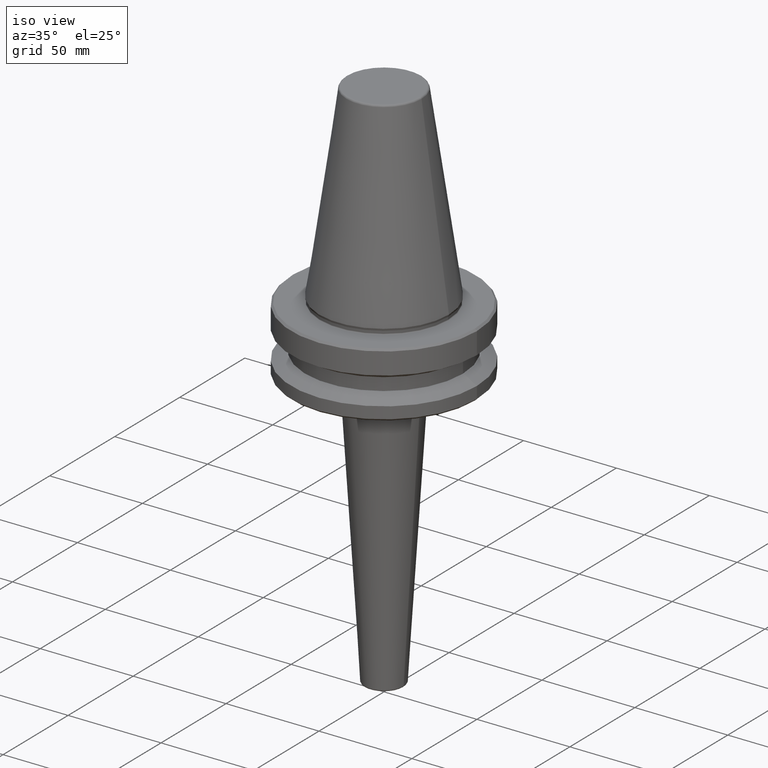
[diagram: clean part render]
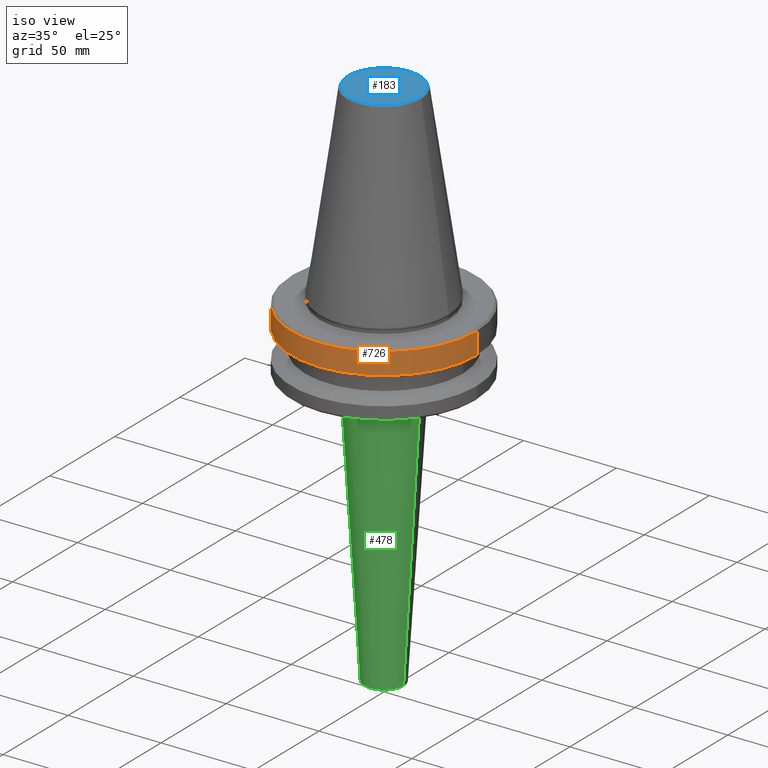
[diagram: same view with three faces highlighted in distinct colors, each labeled with its STEP entity id]
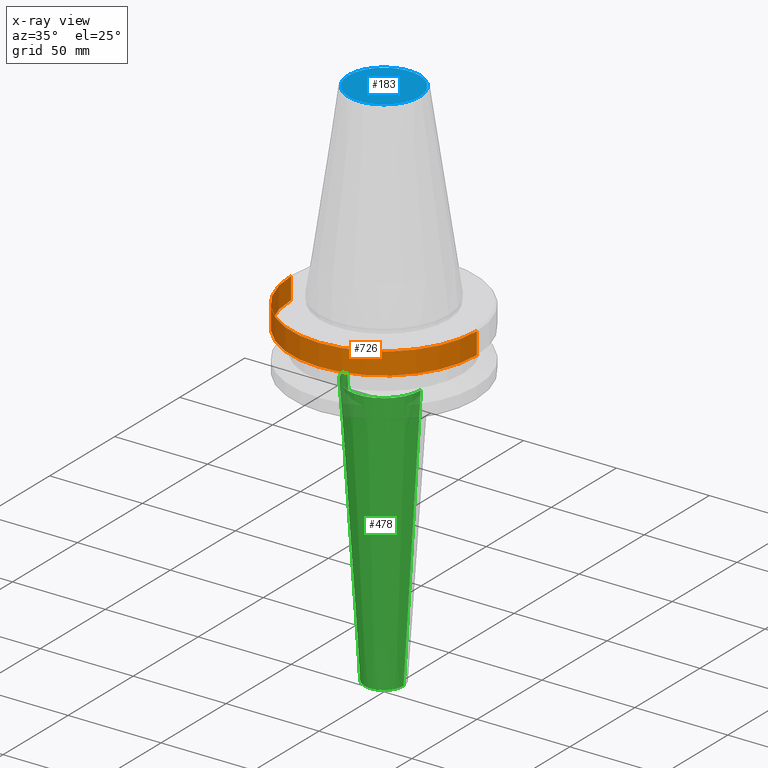
[diagram: x-ray of the same camera — body ghosted, the three highlighted faces saturated]
A machine part, iso view with three faces highlighted in distinct colors.
The next image is the same camera in x-ray (body ghosted, the three faces saturated) — at least one of them is partly hidden behind the body in this view.
Their STEP definitions:

[orange] entity #726 — the highlighted cylindrical surface (partial cylindrical patch) has radius 50 mm, axis along (-0, -0, 1).
#56 = VERTEX_POINT ( 'NONE', #173 ) ;
#65 = DIRECTION ( 'NONE',  ( -0.0000000000000000000, -0.0000000000000000000, 1.000000000000000000 ) ) ;
#99 = AXIS2_PLACEMENT_3D ( 'NONE', #133, #65, #669 ) ;
#133 = CARTESIAN_POINT ( 'NONE',  ( 0.0000000000000000000, 0.0000000000000000000, -15.70022000322675400 ) ) ;
#135 = VERTEX_POINT ( 'NONE', #220 ) ;
#169 = VECTOR ( 'NONE', #215, 1000.000000000000000 ) ;
#173 = CARTESIAN_POINT ( 'NONE',  ( -50.00000000000000000, 6.123233995736766900E-015, -15.70022000322675400 ) ) ;
#175 = ORIENTED_EDGE ( 'NONE', *, *, #287, .T. ) ;
#215 = DIRECTION ( 'NONE',  ( -0.0000000000000000000, -0.0000000000000000000, 1.000000000000000000 ) ) ;
#218 = FACE_OUTER_BOUND ( 'NONE', #826, .T. ) ;
#220 = CARTESIAN_POINT ( 'NONE',  ( 50.00000000000000000, 0.0000000000000000000, -15.70022000322675400 ) ) ;
#257 = CIRCLE ( 'NONE', #99, 50.00000000000000000 ) ;
#277 = DIRECTION ( 'NONE',  ( 1.000000000000000000, 0.0000000000000000000, 0.0000000000000000000 ) ) ;
#287 = EDGE_CURVE ( 'NONE', #56, #135, #257, .T. ) ;
#311 = ORIENTED_EDGE ( 'NONE', *, *, #468, .F. ) ;
#312 = AXIS2_PLACEMENT_3D ( 'NONE', #819, #592, #277 ) ;
#415 = CARTESIAN_POINT ( 'NONE',  ( -50.00000000000000000, 6.123233995736766100E-015, -3.999999999999989800 ) ) ;
#425 = VERTEX_POINT ( 'NONE', #676 ) ;
#462 = CYLINDRICAL_SURFACE ( 'NONE', #709, 50.00000000000000000 ) ;
#468 = EDGE_CURVE ( 'NONE', #856, #425, #582, .T. ) ;
#481 = CARTESIAN_POINT ( 'NONE',  ( -50.00000000000000000, 6.123233995736766100E-015, 124.5046326327850600 ) ) ;
#484 = DIRECTION ( 'NONE',  ( -0.0000000000000000000, -0.0000000000000000000, 1.000000000000000000 ) ) ;
#494 = DIRECTION ( 'NONE',  ( 1.000000000000000000, 0.0000000000000000000, 0.0000000000000000000 ) ) ;
#536 = LINE ( 'NONE', #965, #169 ) ;
#582 = CIRCLE ( 'NONE', #312, 50.00000000000000000 ) ;
#585 = ORIENTED_EDGE ( 'NONE', *, *, #607, .T. ) ;
#592 = DIRECTION ( 'NONE',  ( -0.0000000000000000000, -0.0000000000000000000, 1.000000000000000000 ) ) ;
#601 = EDGE_CURVE ( 'NONE', #56, #856, #821, .T. ) ;
#607 = EDGE_CURVE ( 'NONE', #135, #425, #536, .T. ) ;
#669 = DIRECTION ( 'NONE',  ( 1.000000000000000000, 0.0000000000000000000, 0.0000000000000000000 ) ) ;
#676 = CARTESIAN_POINT ( 'NONE',  ( 50.00000000000000000, 0.0000000000000000000, -3.999999999999989800 ) ) ;
#709 = AXIS2_PLACEMENT_3D ( 'NONE', #797, #484, #494 ) ;
#726 = ADVANCED_FACE ( 'NONE', ( #218 ), #462, .T. ) ;
#797 = CARTESIAN_POINT ( 'NONE',  ( 0.0000000000000000000, 0.0000000000000000000, 124.5046326327850600 ) ) ;
#819 = CARTESIAN_POINT ( 'NONE',  ( 0.0000000000000000000, 0.0000000000000000000, -3.999999999999989800 ) ) ;
#821 = LINE ( 'NONE', #481, #925 ) ;
#826 = EDGE_LOOP ( 'NONE', ( #830, #175, #585, #311 ) ) ;
#830 = ORIENTED_EDGE ( 'NONE', *, *, #601, .F. ) ;
#832 = DIRECTION ( 'NONE',  ( -0.0000000000000000000, -0.0000000000000000000, 1.000000000000000000 ) ) ;
#856 = VERTEX_POINT ( 'NONE', #415 ) ;
#925 = VECTOR ( 'NONE', #832, 1000.000000000000000 ) ;
#965 = CARTESIAN_POINT ( 'NONE',  ( 50.00000000000000000, 0.0000000000000000000, 124.5046326327850600 ) ) ;

[blue] entity #183 — the highlighted planar face has unit normal (0, 0, -1).
#47 = DIRECTION ( 'NONE',  ( 1.000000000000000000, 0.0000000000000000000, 0.0000000000000000000 ) ) ;
#117 = AXIS2_PLACEMENT_3D ( 'NONE', #303, #351, #697 ) ;
#134 = AXIS2_PLACEMENT_3D ( 'NONE', #627, #911, #47 ) ;
#183 = ADVANCED_FACE ( 'NONE', ( #763 ), #828, .F. ) ;
#303 = CARTESIAN_POINT ( 'NONE',  ( 0.0000000000000000000, 0.0000000000000000000, 101.7999999999999800 ) ) ;
#306 = EDGE_LOOP ( 'NONE', ( #388, #984 ) ) ;
#330 = VERTEX_POINT ( 'NONE', #973 ) ;
#351 = DIRECTION ( 'NONE',  ( -0.0000000000000000000, -0.0000000000000000000, 1.000000000000000000 ) ) ;
#382 = EDGE_CURVE ( 'NONE', #461, #330, #557, .T. ) ;
#388 = ORIENTED_EDGE ( 'NONE', *, *, #1001, .T. ) ;
#461 = VERTEX_POINT ( 'NONE', #877 ) ;
#557 = CIRCLE ( 'NONE', #134, 19.21428326503027200 ) ;
#579 = AXIS2_PLACEMENT_3D ( 'NONE', #847, #640, #983 ) ;
#627 = CARTESIAN_POINT ( 'NONE',  ( 0.0000000000000000000, 0.0000000000000000000, 101.7999999999999800 ) ) ;
#640 = DIRECTION ( 'NONE',  ( 0.0000000000000000000, 0.0000000000000000000, -1.000000000000000000 ) ) ;
#697 = DIRECTION ( 'NONE',  ( 1.000000000000000000, 0.0000000000000000000, 0.0000000000000000000 ) ) ;
#763 = FACE_OUTER_BOUND ( 'NONE', #306, .T. ) ;
#804 = CIRCLE ( 'NONE', #117, 19.21428326503027200 ) ;
#828 = PLANE ( 'NONE',  #579 ) ;
#847 = CARTESIAN_POINT ( 'NONE',  ( 0.0000000000000000000, 0.0000000000000000000, 101.8000000000000000 ) ) ;
#877 = CARTESIAN_POINT ( 'NONE',  ( -19.21428326503027200, 2.413662457824437800E-015, 101.7999999999999800 ) ) ;
#911 = DIRECTION ( 'NONE',  ( -0.0000000000000000000, -0.0000000000000000000, 1.000000000000000000 ) ) ;
#973 = CARTESIAN_POINT ( 'NONE',  ( 19.21428326503027200, 0.0000000000000000000, 101.7999999999999800 ) ) ;
#983 = DIRECTION ( 'NONE',  ( -1.000000000000000000, 0.0000000000000000000, -0.0000000000000000000 ) ) ;
#984 = ORIENTED_EDGE ( 'NONE', *, *, #382, .T. ) ;
#1001 = EDGE_CURVE ( 'NONE', #330, #461, #804, .T. ) ;

[green] entity #478 — the highlighted conical surface has half-angle 3.624 deg.
#18 = CARTESIAN_POINT ( 'NONE',  ( 20.00000000000003900, 0.0000000000000000000, -38.00000000000000700 ) ) ;
#29 = CARTESIAN_POINT ( 'NONE',  ( -20.00000000000003900, 2.449293598294710900E-015, -38.00000000000000700 ) ) ;
#49 = CARTESIAN_POINT ( 'NONE',  ( 0.0000000000000000000, 0.0000000000000000000, -40.81037991303176700 ) ) ;
#52 = ORIENTED_EDGE ( 'NONE', *, *, #473, .T. ) ;
#101 = CARTESIAN_POINT ( 'NONE',  ( 0.0000000000000000000, 0.0000000000000000000, -38.00000000000000700 ) ) ;
#105 = EDGE_LOOP ( 'NONE', ( #590, #52, #660, #921 ) ) ;
#107 = VERTEX_POINT ( 'NONE', #963 ) ;
#159 = VERTEX_POINT ( 'NONE', #213 ) ;
#191 = DIRECTION ( 'NONE',  ( 0.06320669565607287000, 0.0000000000000000000, 0.9980004577274704800 ) ) ;
#213 = CARTESIAN_POINT ( 'NONE',  ( -19.82200927217469300, 2.427496020783789300E-015, -40.81037991303176700 ) ) ;
#240 = LINE ( 'NONE', #18, #435 ) ;
#244 = CARTESIAN_POINT ( 'NONE',  ( 10.55933024260852400, 0.0000000000000000000, -187.0632066956561100 ) ) ;
#333 = EDGE_CURVE ( 'NONE', #107, #159, #742, .T. ) ;
#341 = EDGE_CURVE ( 'NONE', #932, #159, #698, .T. ) ;
#349 = DIRECTION ( 'NONE',  ( 1.000000000000000000, 0.0000000000000000000, 0.0000000000000000000 ) ) ;
#362 = DIRECTION ( 'NONE',  ( 0.0000000000000000000, 0.0000000000000000000, -1.000000000000000000 ) ) ;
#363 = AXIS2_PLACEMENT_3D ( 'NONE', #101, #732, #741 ) ;
#435 = VECTOR ( 'NONE', #191, 1000.000000000000000 ) ;
#446 = AXIS2_PLACEMENT_3D ( 'NONE', #49, #362, #782 ) ;
#473 = EDGE_CURVE ( 'NONE', #107, #890, #780, .T. ) ;
#478 = ADVANCED_FACE ( 'NONE', ( #638 ), #882, .T. ) ;
#521 = VECTOR ( 'NONE', #887, 1000.000000000000000 ) ;
#584 = DIRECTION ( 'NONE',  ( -0.0000000000000000000, -0.0000000000000000000, 1.000000000000000000 ) ) ;
#590 = ORIENTED_EDGE ( 'NONE', *, *, #333, .F. ) ;
#638 = FACE_OUTER_BOUND ( 'NONE', #105, .T. ) ;
#660 = ORIENTED_EDGE ( 'NONE', *, *, #756, .T. ) ;
#667 = CARTESIAN_POINT ( 'NONE',  ( 0.0000000000000000000, 0.0000000000000000000, -187.0632066956561100 ) ) ;
#698 = CIRCLE ( 'NONE', #446, 19.82200927217469300 ) ;
#732 = DIRECTION ( 'NONE',  ( -0.0000000000000000000, -0.0000000000000000000, 1.000000000000000000 ) ) ;
#741 = DIRECTION ( 'NONE',  ( 1.000000000000000000, 0.0000000000000000000, 0.0000000000000000000 ) ) ;
#742 = LINE ( 'NONE', #29, #521 ) ;
#756 = EDGE_CURVE ( 'NONE', #890, #932, #240, .T. ) ;
#780 = CIRCLE ( 'NONE', #1000, 10.55933024260852400 ) ;
#782 = DIRECTION ( 'NONE',  ( -1.000000000000000000, 0.0000000000000000000, 0.0000000000000000000 ) ) ;
#878 = CARTESIAN_POINT ( 'NONE',  ( 19.82200927217469300, 0.0000000000000000000, -40.81037991303176700 ) ) ;
#882 = CONICAL_SURFACE ( 'NONE', #363, 20.00000000000003900, 0.06324885753307296600 ) ;
#887 = DIRECTION ( 'NONE',  ( -0.06320669565607287000, 7.740587751989055400E-018, 0.9980004577274704800 ) ) ;
#890 = VERTEX_POINT ( 'NONE', #244 ) ;
#921 = ORIENTED_EDGE ( 'NONE', *, *, #341, .T. ) ;
#932 = VERTEX_POINT ( 'NONE', #878 ) ;
#963 = CARTESIAN_POINT ( 'NONE',  ( -10.55933024260852400, 1.293144998275037500E-015, -187.0632066956561100 ) ) ;
#1000 = AXIS2_PLACEMENT_3D ( 'NONE', #667, #584, #349 ) ;